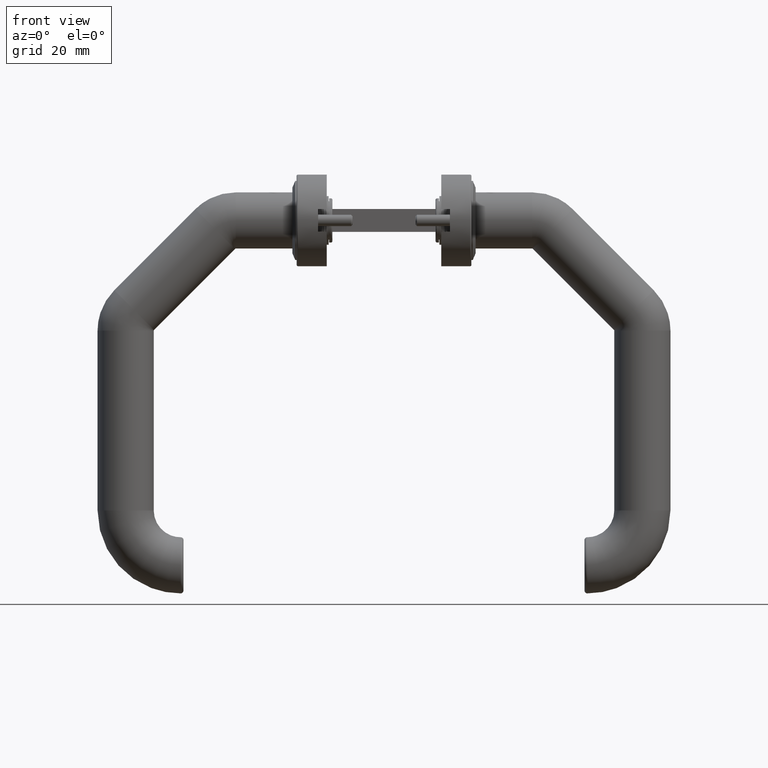
[diagram: clean part render]
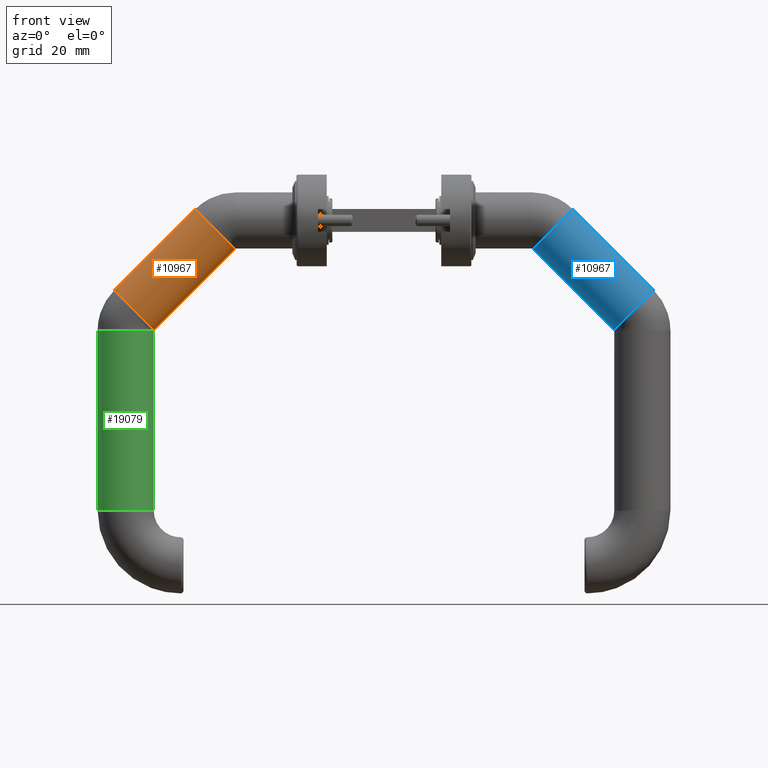
[diagram: same view with three faces highlighted in distinct colors, each labeled with its STEP entity id]
A machine part, front view with three faces highlighted in distinct colors.
Their STEP definitions:

[orange] entity #10967 — the highlighted cylindrical surface (bore or boss wall) has radius 9.8 mm, axis along (-0.7071, 0, -0.7071).
#1563 = VERTEX_POINT ( 'NONE', #12487 ) ;
#1645 = CIRCLE ( 'NONE', #17949, 9.799999999999998934 ) ;
#3959 = DIRECTION ( 'NONE',  ( -0.7071067811865475727, 0.000000000000000000, 0.7071067811865474617 ) ) ;
#3986 = EDGE_LOOP ( 'NONE', ( #18603 ) ) ;
#5742 = CIRCLE ( 'NONE', #6953, 9.800000000000000711 ) ;
#6133 = CARTESIAN_POINT ( 'NONE',  ( -34.14213562373092259, 0.000000000000000000, -5.857864376269044548 ) ) ;
#6429 = DIRECTION ( 'NONE',  ( 0.7071067811865473507, 0.000000000000000000, 0.7071067811865476838 ) ) ;
#6630 = CARTESIAN_POINT ( 'NONE',  ( -41.07178207935908887, 0.000000000000000000, -12.78751083189721349 ) ) ;
#6899 = EDGE_LOOP ( 'NONE', ( #14995 ) ) ;
#6953 = AXIS2_PLACEMENT_3D ( 'NONE', #6630, #16433, #6429 ) ;
#7437 = CARTESIAN_POINT ( 'NONE',  ( -12.78751083189720994, 0.000000000000000000, -41.07178207935911018 ) ) ;
#7712 = DIRECTION ( 'NONE',  ( 0.7071067811865479058, 0.000000000000000000, 0.7071067811865472397 ) ) ;
#8469 = FACE_OUTER_BOUND ( 'NONE', #6899, .T. ) ;
#8943 = EDGE_CURVE ( 'NONE', #1563, #1563, #1645, .T. ) ;
#9074 = DIRECTION ( 'NONE',  ( -0.7071067811865473507, 0.000000000000000000, 0.7071067811865477948 ) ) ;
#10300 = CARTESIAN_POINT ( 'NONE',  ( -12.78751083189720994, 0.000000000000000000, -41.07178207935911018 ) ) ;
#10967 = ADVANCED_FACE ( 'NONE', ( #8469, #20262 ), #18740, .T. ) ;
#12487 = CARTESIAN_POINT ( 'NONE',  ( -5.857864376269041884, 0.000000000000000000, -34.14213562373094391 ) ) ;
#13760 = DIRECTION ( 'NONE',  ( 0.7071067811865477948, 0.000000000000000000, 0.7071067811865474617 ) ) ;
#14300 = AXIS2_PLACEMENT_3D ( 'NONE', #7437, #9074, #7712 ) ;
#14828 = VERTEX_POINT ( 'NONE', #6133 ) ;
#14995 = ORIENTED_EDGE ( 'NONE', *, *, #8943, .T. ) ;
#16433 = DIRECTION ( 'NONE',  ( -0.7071067811865475727, 0.000000000000000000, 0.7071067811865474617 ) ) ;
#17008 = EDGE_CURVE ( 'NONE', #14828, #14828, #5742, .T. ) ;
#17949 = AXIS2_PLACEMENT_3D ( 'NONE', #10300, #3959, #13760 ) ;
#18603 = ORIENTED_EDGE ( 'NONE', *, *, #17008, .F. ) ;
#18740 = CYLINDRICAL_SURFACE ( 'NONE', #14300, 9.800000000000002487 ) ;
#20262 = FACE_OUTER_BOUND ( 'NONE', #3986, .T. ) ;

[blue] entity #10967 — the highlighted cylindrical surface (bore or boss wall) has radius 9.8 mm, axis along (0.7071, 0, -0.7071).
#1563 = VERTEX_POINT ( 'NONE', #12487 ) ;
#1645 = CIRCLE ( 'NONE', #17949, 9.799999999999998934 ) ;
#3959 = DIRECTION ( 'NONE',  ( -0.7071067811865475727, 0.000000000000000000, 0.7071067811865474617 ) ) ;
#3986 = EDGE_LOOP ( 'NONE', ( #18603 ) ) ;
#5742 = CIRCLE ( 'NONE', #6953, 9.800000000000000711 ) ;
#6133 = CARTESIAN_POINT ( 'NONE',  ( -34.14213562373092259, 0.000000000000000000, -5.857864376269044548 ) ) ;
#6429 = DIRECTION ( 'NONE',  ( 0.7071067811865473507, 0.000000000000000000, 0.7071067811865476838 ) ) ;
#6630 = CARTESIAN_POINT ( 'NONE',  ( -41.07178207935908887, 0.000000000000000000, -12.78751083189721349 ) ) ;
#6899 = EDGE_LOOP ( 'NONE', ( #14995 ) ) ;
#6953 = AXIS2_PLACEMENT_3D ( 'NONE', #6630, #16433, #6429 ) ;
#7437 = CARTESIAN_POINT ( 'NONE',  ( -12.78751083189720994, 0.000000000000000000, -41.07178207935911018 ) ) ;
#7712 = DIRECTION ( 'NONE',  ( 0.7071067811865479058, 0.000000000000000000, 0.7071067811865472397 ) ) ;
#8469 = FACE_OUTER_BOUND ( 'NONE', #6899, .T. ) ;
#8943 = EDGE_CURVE ( 'NONE', #1563, #1563, #1645, .T. ) ;
#9074 = DIRECTION ( 'NONE',  ( -0.7071067811865473507, 0.000000000000000000, 0.7071067811865477948 ) ) ;
#10300 = CARTESIAN_POINT ( 'NONE',  ( -12.78751083189720994, 0.000000000000000000, -41.07178207935911018 ) ) ;
#10967 = ADVANCED_FACE ( 'NONE', ( #8469, #20262 ), #18740, .T. ) ;
#12487 = CARTESIAN_POINT ( 'NONE',  ( -5.857864376269041884, 0.000000000000000000, -34.14213562373094391 ) ) ;
#13760 = DIRECTION ( 'NONE',  ( 0.7071067811865477948, 0.000000000000000000, 0.7071067811865474617 ) ) ;
#14300 = AXIS2_PLACEMENT_3D ( 'NONE', #7437, #9074, #7712 ) ;
#14828 = VERTEX_POINT ( 'NONE', #6133 ) ;
#14995 = ORIENTED_EDGE ( 'NONE', *, *, #8943, .T. ) ;
#16433 = DIRECTION ( 'NONE',  ( -0.7071067811865475727, 0.000000000000000000, 0.7071067811865474617 ) ) ;
#17008 = EDGE_CURVE ( 'NONE', #14828, #14828, #5742, .T. ) ;
#17949 = AXIS2_PLACEMENT_3D ( 'NONE', #10300, #3959, #13760 ) ;
#18603 = ORIENTED_EDGE ( 'NONE', *, *, #17008, .F. ) ;
#18740 = CYLINDRICAL_SURFACE ( 'NONE', #14300, 9.800000000000002487 ) ;
#20262 = FACE_OUTER_BOUND ( 'NONE', #3986, .T. ) ;

[green] entity #19079 — the highlighted cylindrical surface (bore or boss wall) has radius 9.8 mm, axis along (-0, 0, -1).
#127 = ORIENTED_EDGE ( 'NONE', *, *, #7346, .T. ) ;
#265 = EDGE_LOOP ( 'NONE', ( #18689 ) ) ;
#1001 = CARTESIAN_POINT ( 'NONE',  ( -111.0000000000000142, 0.000000000000000000, 1.040834085586084257E-14 ) ) ;
#2150 = CARTESIAN_POINT ( 'NONE',  ( -111.0000000000000142, 0.000000000000000000, -9.799999999999993605 ) ) ;
#4167 = CYLINDRICAL_SURFACE ( 'NONE', #8606, 9.800000000000002487 ) ;
#4246 = DIRECTION ( 'NONE',  ( 0.000000000000000000, 0.000000000000000000, 1.000000000000000000 ) ) ;
#4444 = DIRECTION ( 'NONE',  ( -1.000000000000000000, 0.000000000000000000, -2.775557561562891351E-16 ) ) ;
#5964 = DIRECTION ( 'NONE',  ( -1.000000000000000000, 0.000000000000000000, 5.532020469128654318E-17 ) ) ;
#6523 = CIRCLE ( 'NONE', #11464, 9.800000000000002487 ) ;
#7346 = EDGE_CURVE ( 'NONE', #19247, #19247, #6523, .T. ) ;
#7730 = CIRCLE ( 'NONE', #10020, 9.800000000000002487 ) ;
#8460 = VERTEX_POINT ( 'NONE', #1001 ) ;
#8587 = DIRECTION ( 'NONE',  ( 0.000000000000000000, 0.000000000000000000, 1.000000000000000000 ) ) ;
#8606 = AXIS2_PLACEMENT_3D ( 'NONE', #9392, #5964, #11099 ) ;
#9392 = CARTESIAN_POINT ( 'NONE',  ( -48.28427124746188781, 0.000000000000000000, -9.799999999999995381 ) ) ;
#10020 = AXIS2_PLACEMENT_3D ( 'NONE', #2150, #13519, #8587 ) ;
#10712 = EDGE_CURVE ( 'NONE', #8460, #8460, #7730, .T. ) ;
#11099 = DIRECTION ( 'NONE',  ( 0.000000000000000000, 0.000000000000000000, 1.000000000000000000 ) ) ;
#11464 = AXIS2_PLACEMENT_3D ( 'NONE', #15826, #4444, #4246 ) ;
#13519 = DIRECTION ( 'NONE',  ( -1.000000000000000000, 0.000000000000000000, -2.775557561562891351E-16 ) ) ;
#14414 = FACE_OUTER_BOUND ( 'NONE', #265, .T. ) ;
#15826 = CARTESIAN_POINT ( 'NONE',  ( -48.28427124746188781, 0.000000000000000000, -9.799999999999995381 ) ) ;
#17445 = CARTESIAN_POINT ( 'NONE',  ( -48.28427124746188781, 0.000000000000000000, 6.938893903907228378E-15 ) ) ;
#18689 = ORIENTED_EDGE ( 'NONE', *, *, #10712, .F. ) ;
#19079 = ADVANCED_FACE ( 'NONE', ( #20830, #14414 ), #4167, .T. ) ;
#19247 = VERTEX_POINT ( 'NONE', #17445 ) ;
#19954 = EDGE_LOOP ( 'NONE', ( #127 ) ) ;
#20830 = FACE_OUTER_BOUND ( 'NONE', #19954, .T. ) ;